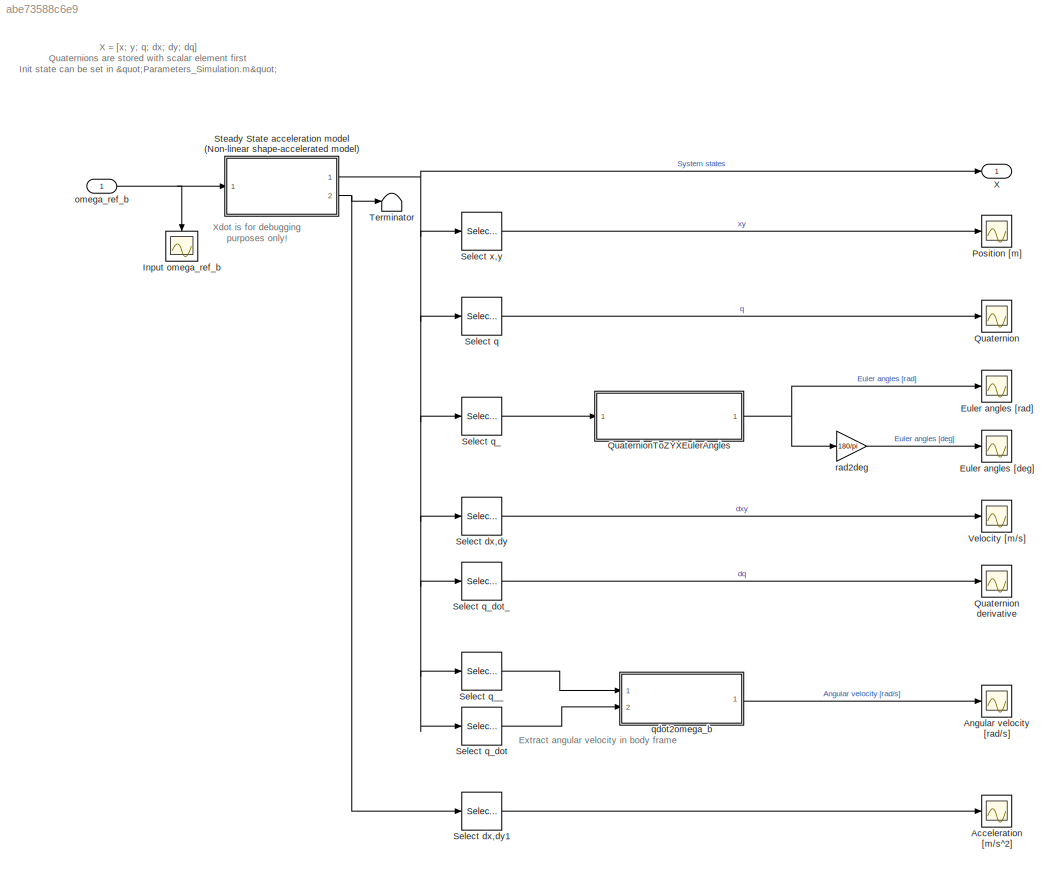
MODEL slx_abe73588c6e9
KIND model
CONFIG AbsTol = auto
CONFIG EnableMultiTasking = off
CONFIG FixedStep = 1e-3
CONFIG InitFcn = Parameters_Simulation\nConstants_Kugle\nConstants_nominal
CONFIG MaxStep = 1e-2
CONFIG MinStep = auto
CONFIG PreLoadFcn = modelDir = fileparts(get_param(bdroot, 'FileName'));\naddpath(fullfile(modelDir,'../../Parameters'));\naddpath(fullfile(modelDir,'../../Model/generated'));\naddpath(fullfile(modelDir,'../../Misc'));\n\nParameters_Simulation\nConstants_Kugle\nConstants_nominal
CONFIG RelTol = 1e-5
CONFIG SampleTimeConstraint = Unconstrained
CONFIG Solver = VariableStepAuto
CONFIG SolverName = VariableStepAuto
CONFIG StartTime = 0.0
CONFIG StopTime = 25
BLOCK [Scope] Acceleration [m//s^2]
  Floating = off
  NumInputPorts = 1
  Ports = [1]
  ScopeSpecificationString = Simulink.scopes.TimeScopeBlockCfg('CurrentConfiguration', extmgr.ConfigurationSet(extmgr.Configuration('Core','General UI',true),extmgr.Configuration('Core','Source UI',true),extmgr.Configuration('Sources','WiredSimulink',true,'DataLoggingVariableName','ScopeData1'),extmgr.Configuration('Visuals','Time Domain',true,'SerializedDisplays',{struct('MinYLimReal','-0.07757','MaxYLimReal','0.00672','YLab...<+1520ch>
BLOCK [Scope] Angular velocity [rad//s]
  Floating = off
  NumInputPorts = 1
  Ports = [1]
  ScopeSpecificationString = Simulink.scopes.TimeScopeBlockCfg('CurrentConfiguration', extmgr.ConfigurationSet(extmgr.Configuration('Core','General UI',true),extmgr.Configuration('Core','Source UI',true),extmgr.Configuration('Sources','WiredSimulink',true,'DataLoggingVariableName','ScopeData2'),extmgr.Configuration('Visuals','Time Domain',true,'SerializedDisplays',{struct('MinYLimReal','-0.50513','MaxYLimReal','0.63139','YLab...<+1577ch>
BLOCK [Scope] Euler angles [deg]
  Floating = off
  NumInputPorts = 1
  Ports = [1]
  ScopeSpecificationString = Simulink.scopes.TimeScopeBlockCfg('CurrentConfiguration', extmgr.ConfigurationSet(extmgr.Configuration('Core','General UI',true),extmgr.Configuration('Core','Source UI',true),extmgr.Configuration('Sources','WiredSimulink',true,'DataLoggingVariableName','ScopeData3'),extmgr.Configuration('Visuals','Time Domain',true,'SerializedDisplays',{struct('MinYLimReal','-12.16745','MaxYLimReal','12.24214','YL...<+1594ch>
BLOCK [Scope] Euler angles [rad]
  Floating = off
  NumInputPorts = 1
  Ports = [1]
  ScopeSpecificationString = Simulink.scopes.TimeScopeBlockCfg('CurrentConfiguration', extmgr.ConfigurationSet(extmgr.Configuration('Core','General UI',true),extmgr.Configuration('Core','Source UI',true),extmgr.Configuration('Sources','WiredSimulink',true,'DataLoggingVariableName','ScopeData4'),extmgr.Configuration('Visuals','Time Domain',true,'SerializedDisplays',{struct('MinYLimReal','-0.00196','MaxYLimReal','0.00406','YLab...<+1535ch>
BLOCK [Scope] Input omega_ref_b
  Floating = off
  NumInputPorts = 1
  Ports = [1]
  ScopeSpecificationString = Simulink.scopes.TimeScopeBlockCfg('CurrentConfiguration', extmgr.ConfigurationSet(extmgr.Configuration('Core','General UI',true),extmgr.Configuration('Core','Source UI',true),extmgr.Configuration('Sources','WiredSimulink',true,'DataLoggingVariableName','ScopeData6'),extmgr.Configuration('Visuals','Time Domain',true,'SerializedDisplays',{struct('MinYLimReal','-0.50513','MaxYLimReal','0.63139','YLab...<+1601ch>
BLOCK [Scope] Position [m]
  Floating = off
  NumInputPorts = 1
  Ports = [1]
  ScopeSpecificationString = Simulink.scopes.TimeScopeBlockCfg('CurrentConfiguration', extmgr.ConfigurationSet(extmgr.Configuration('Core','General UI',true),extmgr.Configuration('Core','Source UI',true),extmgr.Configuration('Sources','WiredSimulink',true,'DataLoggingVariableName','ScopeData5'),extmgr.Configuration('Visuals','Time Domain',true,'SerializedDisplays',{struct('MinYLimReal','-8.61406','MaxYLimReal','8.73542','YLab...<+1468ch>
BLOCK [Scope] Quaternion
  Floating = off
  NumInputPorts = 1
  Ports = [1]
  ScopeSpecificationString = Simulink.scopes.TimeScopeBlockCfg('CurrentConfiguration', extmgr.ConfigurationSet(extmgr.Configuration('Core','General UI',true),extmgr.Configuration('Core','Source UI',true),extmgr.Configuration('Sources','WiredSimulink',true,'DataLoggingVariableName','ScopeData6'),extmgr.Configuration('Visuals','Time Domain',true,'SerializedDisplays',{struct('MinYLimReal','-0.19697','MaxYLimReal','1.13298','YLab...<+1484ch>
BLOCK [Scope] Quaternion derivative
  Floating = off
  NumInputPorts = 1
  Ports = [1]
  ScopeSpecificationString = Simulink.scopes.TimeScopeBlockCfg('CurrentConfiguration', extmgr.ConfigurationSet(extmgr.Configuration('Core','General UI',true),extmgr.Configuration('Core','Source UI',true),extmgr.Configuration('Sources','WiredSimulink',true,'DataLoggingVariableName','ScopeData7'),extmgr.Configuration('Visuals','Time Domain',true,'SerializedDisplays',{struct('MinYLimReal','-1.99714','MaxYLimReal','1.05638','YLab...<+1492ch>
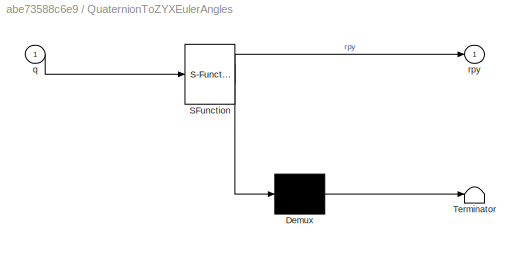
BLOCK [SubSystem] QuaternionToZYXEulerAngles
  ErrorFcn = Stateflow.Translate.translate
  PermitHierarchicalResolution = ExplicitOnly
  Ports = [1, 1]
  RequestExecContextInheritance = off
  SFBlockType = MATLAB Function
  TreatAsAtomicUnit = on
BLOCK [Demux] QuaternionToZYXEulerAngles/ Demux 
  Outputs = 1
  Ports = [1, 1]
BLOCK [S-Function] QuaternionToZYXEulerAngles/ SFunction 
  EnableBusSupport = on
  FunctionName = sf_sfun
  PortCounts = [1 2]
  Ports = [1, 2]
  SFcnIsStateOwnerBlock = off
  SFunctionDeploymentMode = off
  Tag = Stateflow S-Function SteadyStateAccelerationModel 1
BLOCK [Terminator] QuaternionToZYXEulerAngles/ Terminator 
BLOCK [Inport] QuaternionToZYXEulerAngles/q
  IconDisplay = Port number
BLOCK [Outport] QuaternionToZYXEulerAngles/rpy
  IconDisplay = Port number
BLOCK [Selector] Select dx,dy
  IndexOptions = Index vector (dialog)
  Indices = [7,8]
  InputPortWidth = 12
  OutputSizes = 1
  Ports = [1, 1]
BLOCK [Selector] Select dx,dy1
  IndexOptions = Index vector (dialog)
  Indices = [7,8]
  InputPortWidth = 12
  OutputSizes = 1
  Ports = [1, 1]
BLOCK [Selector] Select q
  IndexOptions = Index vector (dialog)
  Indices = [3,4,5,6]
  InputPortWidth = 12
  OutputSizes = 1
  Ports = [1, 1]
BLOCK [Selector] Select q_
  IndexOptions = Index vector (dialog)
  Indices = [3,4,5,6]
  InputPortWidth = 12
  OutputSizes = 1
  Ports = [1, 1]
BLOCK [Selector] Select q__
  IndexOptions = Index vector (dialog)
  Indices = [3,4,5,6]
  InputPortWidth = 12
  OutputSizes = 1
  Ports = [1, 1]
BLOCK [Selector] Select q_dot
  IndexOptions = Index vector (dialog)
  Indices = [9,10,11,12]
  InputPortWidth = 12
  OutputSizes = 1
  Ports = [1, 1]
BLOCK [Selector] Select q_dot_
  IndexOptions = Index vector (dialog)
  Indices = [9,10,11,12]
  InputPortWidth = 12
  OutputSizes = 1
  Ports = [1, 1]
BLOCK [Selector] Select x,y
  IndexOptions = Index vector (dialog)
  Indices = [1,2]
  InputPortWidth = 12
  OutputSizes = 1
  Ports = [1, 1]
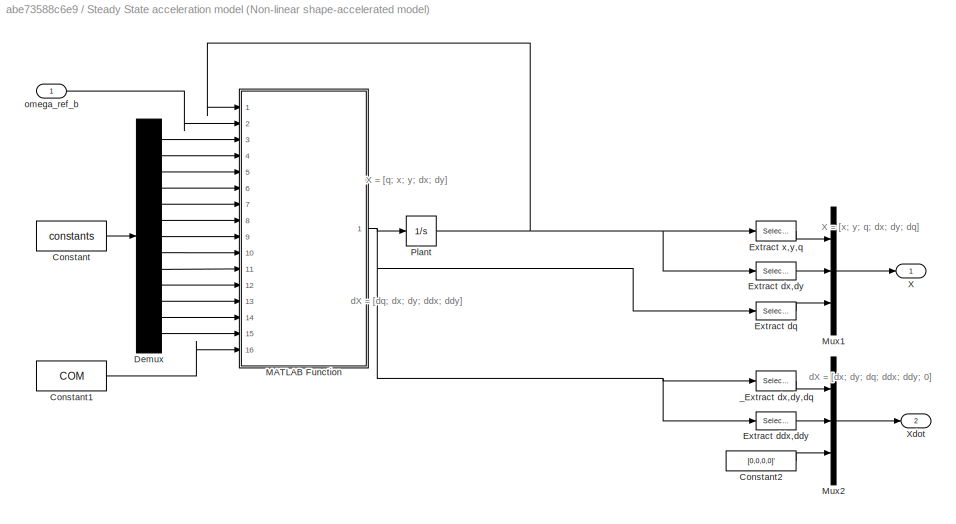
BLOCK [SubSystem] Steady State acceleration model (Non-linear shape-accelerated model)
  Ports = [1, 2]
  RequestExecContextInheritance = off
BLOCK [Constant] Steady State acceleration model (Non-linear shape-accelerated model)/Constant
  Value = constants
BLOCK [Constant] Steady State acceleration model (Non-linear shape-accelerated model)/Constant1
  Value = COM
BLOCK [Constant] Steady State acceleration model (Non-linear shape-accelerated model)/Constant2
  Value = [0,0,0,0]'
BLOCK [Demux] Steady State acceleration model (Non-linear shape-accelerated model)/Demux
  DisplayOption = bar
  Outputs = 13
  Ports = [1, 13]
BLOCK [Selector] Steady State acceleration model (Non-linear shape-accelerated model)/Extract ddx,ddy
  IndexOptions = Index vector (dialog)
  Indices = [7 8]
  InputPortWidth = 8
  OutputSizes = 1
  Ports = [1, 1]
BLOCK [Selector] Steady State acceleration model (Non-linear shape-accelerated model)/Extract dq
  IndexOptions = Index vector (dialog)
  Indices = [1 2 3 4]
  InputPortWidth = 8
  OutputSizes = 1
  Ports = [1, 1]
BLOCK [Selector] Steady State acceleration model (Non-linear shape-accelerated model)/Extract dx,dy
  IndexOptions = Index vector (dialog)
  Indices = [7 8]
  InputPortWidth = 8
  OutputSizes = 1
  Ports = [1, 1]
BLOCK [Selector] Steady State acceleration model (Non-linear shape-accelerated model)/Extract x,y,q
  IndexOptions = Index vector (dialog)
  Indices = [5 6 1 2 3 4]
  InputPortWidth = 8
  OutputSizes = 1
  Ports = [1, 1]
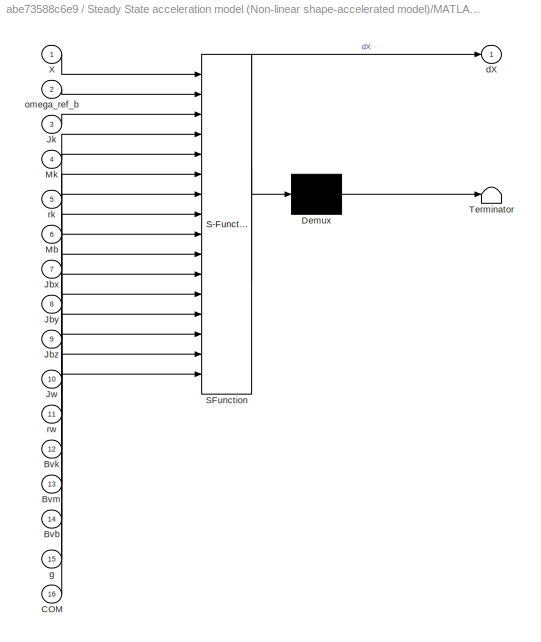
BLOCK [SubSystem] Steady State acceleration model (Non-linear shape-accelerated model)/MATLAB Function
  ErrorFcn = Stateflow.Translate.translate
  PermitHierarchicalResolution = ExplicitOnly
  Ports = [16, 1]
  RequestExecContextInheritance = off
  SFBlockType = MATLAB Function
  TreatAsAtomicUnit = on
BLOCK [Demux] Steady State acceleration model (Non-linear shape-accelerated model)/MATLAB Function/ Demux 
  Outputs = 1
  Ports = [1, 1]
BLOCK [S-Function] Steady State acceleration model (Non-linear shape-accelerated model)/MATLAB Function/ SFunction 
  EnableBusSupport = on
  FunctionName = sf_sfun
  PortCounts = [16 2]
  Ports = [16, 2]
  SFcnIsStateOwnerBlock = off
  SFunctionDeploymentMode = off
  Tag = Stateflow S-Function SteadyStateAccelerationModel 2
BLOCK [Terminator] Steady State acceleration model (Non-linear shape-accelerated model)/MATLAB Function/ Terminator 
BLOCK [Inport] Steady State acceleration model (Non-linear shape-accelerated model)/MATLAB Function/Bvb
  IconDisplay = Port number
  Port = 14
BLOCK [Inport] Steady State acceleration model (Non-linear shape-accelerated model)/MATLAB Function/Bvk
  IconDisplay = Port number
  Port = 12
BLOCK [Inport] Steady State acceleration model (Non-linear shape-accelerated model)/MATLAB Function/Bvm
  IconDisplay = Port number
  Port = 13
BLOCK [Inport] Steady State acceleration model (Non-linear shape-accelerated model)/MATLAB Function/COM
  IconDisplay = Port number
  Port = 16
BLOCK [Inport] Steady State acceleration model (Non-linear shape-accelerated model)/MATLAB Function/Jbx
  IconDisplay = Port number
  Port = 7
BLOCK [Inport] Steady State acceleration model (Non-linear shape-accelerated model)/MATLAB Function/Jby
  IconDisplay = Port number
  Port = 8
BLOCK [Inport] Steady State acceleration model (Non-linear shape-accelerated model)/MATLAB Function/Jbz
  IconDisplay = Port number
  Port = 9
BLOCK [Inport] Steady State acceleration model (Non-linear shape-accelerated model)/MATLAB Function/Jk
  IconDisplay = Port number
  Port = 3
BLOCK [Inport] Steady State acceleration model (Non-linear shape-accelerated model)/MATLAB Function/Jw
  IconDisplay = Port number
  Port = 10
BLOCK [Inport] Steady State acceleration model (Non-linear shape-accelerated model)/MATLAB Function/Mb
  IconDisplay = Port number
  Port = 6
BLOCK [Inport] Steady State acceleration model (Non-linear shape-accelerated model)/MATLAB Function/Mk
  IconDisplay = Port number
  Port = 4
BLOCK [Inport] Steady State acceleration model (Non-linear shape-accelerated model)/MATLAB Function/X
  IconDisplay = Port number
BLOCK [Outport] Steady State acceleration model (Non-linear shape-accelerated model)/MATLAB Function/dX
  IconDisplay = Port number
BLOCK [Inport] Steady State acceleration model (Non-linear shape-accelerated model)/MATLAB Function/g
  IconDisplay = Port number
  Port = 15
BLOCK [Inport] Steady State acceleration model (Non-linear shape-accelerated model)/MATLAB Function/omega_ref_b
  IconDisplay = Port number
  Port = 2
BLOCK [Inport] Steady State acceleration model (Non-linear shape-accelerated model)/MATLAB Function/rk
  IconDisplay = Port number
  Port = 5
BLOCK [Inport] Steady State acceleration model (Non-linear shape-accelerated model)/MATLAB Function/rw
  IconDisplay = Port number
  Port = 11
BLOCK [Mux] Steady State acceleration model (Non-linear shape-accelerated model)/Mux1
  DisplayOption = bar
  Inputs = 3
  Ports = [3, 1]
BLOCK [Mux] Steady State acceleration model (Non-linear shape-accelerated model)/Mux2
  DisplayOption = bar
  Inputs = 3
  Ports = [3, 1]
BLOCK [Integrator] Steady State acceleration model (Non-linear shape-accelerated model)/Plant
  InitialCondition = [x_init(3:6); x_init(1:2); x_init(7:8)]
  Ports = [1, 1]
BLOCK [Outport] Steady State acceleration model (Non-linear shape-accelerated model)/X
  IconDisplay = Port number
BLOCK [Outport] Steady State acceleration model (Non-linear shape-accelerated model)/Xdot
  IconDisplay = Port number
  Port = 2
BLOCK [Selector] Steady State acceleration model (Non-linear shape-accelerated model)/_Extract dx,dy,dq
  IndexOptions = Index vector (dialog)
  Indices = [5 6 1 2 3 4]
  InputPortWidth = 8
  OutputSizes = 1
  Ports = [1, 1]
BLOCK [Inport] Steady State acceleration model (Non-linear shape-accelerated model)/omega_ref_b
  IconDisplay = Port number
BLOCK [Terminator] Terminator
BLOCK [Scope] Velocity [m//s]
  Floating = off
  NumInputPorts = 1
  Ports = [1]
  ScopeSpecificationString = Simulink.scopes.TimeScopeBlockCfg('CurrentConfiguration', extmgr.ConfigurationSet(extmgr.Configuration('Core','General UI',true),extmgr.Configuration('Core','Source UI',true),extmgr.Configuration('Sources','WiredSimulink',true,'DataLoggingVariableName','ScopeData8'),extmgr.Configuration('Visuals','Time Domain',true,'SerializedDisplays',{struct('MinYLimReal','-1.21741','MaxYLimReal','0.13527','YLab...<+1474ch>
BLOCK [Outport] X
  IconDisplay = Port number
BLOCK [Inport] omega_ref_b
  IconDisplay = Port number
  PortDimensions = 3
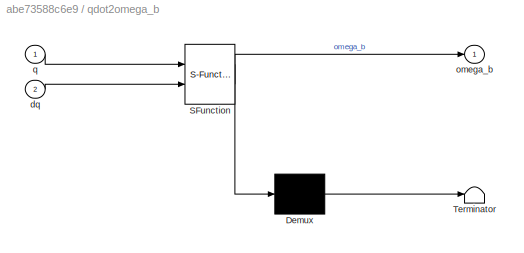
BLOCK [SubSystem] qdot2omega_b
  ErrorFcn = Stateflow.Translate.translate
  PermitHierarchicalResolution = ExplicitOnly
  Ports = [2, 1]
  RequestExecContextInheritance = off
  SFBlockType = MATLAB Function
  TreatAsAtomicUnit = on
BLOCK [Demux] qdot2omega_b/ Demux 
  Outputs = 1
  Ports = [1, 1]
BLOCK [S-Function] qdot2omega_b/ SFunction 
  EnableBusSupport = on
  FunctionName = sf_sfun
  PortCounts = [2 2]
  Ports = [2, 2]
  SFcnIsStateOwnerBlock = off
  SFunctionDeploymentMode = off
  Tag = Stateflow S-Function SteadyStateAccelerationModel 3
BLOCK [Terminator] qdot2omega_b/ Terminator 
BLOCK [Inport] qdot2omega_b/dq
  IconDisplay = Port number
  Port = 2
BLOCK [Outport] qdot2omega_b/omega_b
  IconDisplay = Port number
BLOCK [Inport] qdot2omega_b/q
  IconDisplay = Port number
BLOCK [Gain] rad2deg
  Gain = 180/pi
  OutDataTypeStr = Inherit: Inherit via internal rule
  ParamDataTypeStr = Inherit: Inherit via internal rule
  SaturateOnIntegerOverflow = off
ANNOTATION (root): X = [x; y; q; dx; dy; dq] Quaternions are stored with scalar element first Init state can be set in "Parameters_Simulation.m"
ANNOTATION (root): Xdot is for debugging purposes only!
ANNOTATION (root): Extract angular velocity in body frame
ANNOTATION Steady State acceleration model (Non-linear shape-accelerated model): X = [q; x; y; dx; dy]
ANNOTATION Steady State acceleration model (Non-linear shape-accelerated model): X = [x; y; q; dx; dy; dq]
ANNOTATION Steady State acceleration model (Non-linear shape-accelerated model): dX = [dq; dx; dy; ddx; ddy]
ANNOTATION Steady State acceleration model (Non-linear shape-accelerated model): dX = [dx; dy; dq; ddx; ddy; 0]
NET QuaternionToZYXEulerAngles:1 -> Euler angles [rad]:1, rad2deg:1
LINE Select dx,dy1:1 -> Acceleration [m//s^2]:1
LINE Select dx,dy:1 -> Velocity [m//s]:1
LINE Select q:1 -> Quaternion:1
LINE Select q_:1 -> QuaternionToZYXEulerAngles:1
LINE Select q__:1 -> qdot2omega_b:1
LINE Select q_dot:1 -> qdot2omega_b:2
LINE Select q_dot_:1 -> Quaternion derivative:1
LINE Select x,y:1 -> Position [m]:1
LINE Steady State acceleration model (Non-linear shape-accelerated model)/Constant1:1 -> Steady State acceleration model (Non-linear shape-accelerated model)/MATLAB Function:16
LINE Steady State acceleration model (Non-linear shape-accelerated model)/Constant2:1 -> Steady State acceleration model (Non-linear shape-accelerated model)/Mux2:3
LINE Steady State acceleration model (Non-linear shape-accelerated model)/Constant:1 -> Steady State acceleration model (Non-linear shape-accelerated model)/Demux:1
LINE Steady State acceleration model (Non-linear shape-accelerated model)/Demux:1 -> Steady State acceleration model (Non-linear shape-accelerated model)/MATLAB Function:3
LINE Steady State acceleration model (Non-linear shape-accelerated model)/Demux:10 -> Steady State acceleration model (Non-linear shape-accelerated model)/MATLAB Function:12
LINE Steady State acceleration model (Non-linear shape-accelerated model)/Demux:11 -> Steady State acceleration model (Non-linear shape-accelerated model)/MATLAB Function:13
LINE Steady State acceleration model (Non-linear shape-accelerated model)/Demux:12 -> Steady State acceleration model (Non-linear shape-accelerated model)/MATLAB Function:14
LINE Steady State acceleration model (Non-linear shape-accelerated model)/Demux:13 -> Steady State acceleration model (Non-linear shape-accelerated model)/MATLAB Function:15
LINE Steady State acceleration model (Non-linear shape-accelerated model)/Demux:2 -> Steady State acceleration model (Non-linear shape-accelerated model)/MATLAB Function:4
LINE Steady State acceleration model (Non-linear shape-accelerated model)/Demux:3 -> Steady State acceleration model (Non-linear shape-accelerated model)/MATLAB Function:5
LINE Steady State acceleration model (Non-linear shape-accelerated model)/Demux:4 -> Steady State acceleration model (Non-linear shape-accelerated model)/MATLAB Function:6
LINE Steady State acceleration model (Non-linear shape-accelerated model)/Demux:5 -> Steady State acceleration model (Non-linear shape-accelerated model)/MATLAB Function:7
LINE Steady State acceleration model (Non-linear shape-accelerated model)/Demux:6 -> Steady State acceleration model (Non-linear shape-accelerated model)/MATLAB Function:8
LINE Steady State acceleration model (Non-linear shape-accelerated model)/Demux:7 -> Steady State acceleration model (Non-linear shape-accelerated model)/MATLAB Function:9
LINE Steady State acceleration model (Non-linear shape-accelerated model)/Demux:8 -> Steady State acceleration model (Non-linear shape-accelerated model)/MATLAB Function:10
LINE Steady State acceleration model (Non-linear shape-accelerated model)/Demux:9 -> Steady State acceleration model (Non-linear shape-accelerated model)/MATLAB Function:11
LINE Steady State acceleration model (Non-linear shape-accelerated model)/Extract ddx,ddy:1 -> Steady State acceleration model (Non-linear shape-accelerated model)/Mux2:2
LINE Steady State acceleration model (Non-linear shape-accelerated model)/Extract dq:1 -> Steady State acceleration model (Non-linear shape-accelerated model)/Mux1:3
LINE Steady State acceleration model (Non-linear shape-accelerated model)/Extract dx,dy:1 -> Steady State acceleration model (Non-linear shape-accelerated model)/Mux1:2
LINE Steady State acceleration model (Non-linear shape-accelerated model)/Extract x,y,q:1 -> Steady State acceleration model (Non-linear shape-accelerated model)/Mux1:1
NET Steady State acceleration model (Non-linear shape-accelerated model)/MATLAB Function:1 -> Steady State acceleration model (Non-linear shape-accelerated model)/Extract ddx,ddy:1, Steady State acceleration model (Non-linear shape-accelerated model)/Extract dq:1, Steady State acceleration model (Non-linear shape-accelerated model)/Plant:1, Steady State acceleration model (Non-linear shape-accelerated model)/_Extract dx,dy,dq:1
LINE Steady State acceleration model (Non-linear shape-accelerated model)/Mux1:1 -> Steady State acceleration model (Non-linear shape-accelerated model)/X:1
LINE Steady State acceleration model (Non-linear shape-accelerated model)/Mux2:1 -> Steady State acceleration model (Non-linear shape-accelerated model)/Xdot:1
NET Steady State acceleration model (Non-linear shape-accelerated model)/Plant:1 -> Steady State acceleration model (Non-linear shape-accelerated model)/Extract dx,dy:1, Steady State acceleration model (Non-linear shape-accelerated model)/Extract x,y,q:1, Steady State acceleration model (Non-linear shape-accelerated model)/MATLAB Function:1
LINE Steady State acceleration model (Non-linear shape-accelerated model)/_Extract dx,dy,dq:1 -> Steady State acceleration model (Non-linear shape-accelerated model)/Mux2:1
LINE Steady State acceleration model (Non-linear shape-accelerated model)/omega_ref_b:1 -> Steady State acceleration model (Non-linear shape-accelerated model)/MATLAB Function:2
NET Steady State acceleration model (Non-linear shape-accelerated model):1 -> Select dx,dy:1, Select q:1, Select q_:1, Select q__:1, Select q_dot:1, Select q_dot_:1, Select x,y:1, X:1
NET Steady State acceleration model (Non-linear shape-accelerated model):2 -> Select dx,dy1:1, Terminator:1
NET omega_ref_b:1 -> Input omega_ref_b:1, Steady State acceleration model (Non-linear shape-accelerated model):1
LINE qdot2omega_b:1 -> Angular velocity [rad//s]:1
LINE rad2deg:1 -> Euler angles [deg]:1
note: NET lines group one-source signal fan-out (src -> all destinations, sorted); 1:1 wires keep LINE
CHART QuaternionToZYXEulerAngles states=1 transitions=1
  STATE_LABEL 'eML_blk_kernel()'
  STATE_LABEL 'SCRIPT:\nfunction rpy = Quaternion2ZYXEulerAngles(q)\n    rpy = Quaternion2ZYXEulerAngles(q);\nend'
CHART Steady State acceleration model
(Non-linear shape-accelerated model)/MATLAB Function states=1 transitions=1
  STATE_LABEL 'eML_blk_kernel()'
  STATE_LABEL 'SCRIPT:\nfunction dX = NonlinearMPCmodel(X,omega_ref_b,Jk,Mk,rk,Mb,Jbx,Jby,Jbz,Jw,rw,Bvk,Bvm,Bvb,g,COM)\n    Phi = @(q)[q(1) -q(2) -q(3) -q(4);     % for q o p = Phi(q) * p\n              q(2) q(1)  -q(4) q(3);\n              q(3) q(4)  q(1)  -q(2);\n              q(4) -q(3) q(2)  q(1)];           \n    Gamma = @(p)[p(1) -p(2) -p(3) -p(4);   % for q o p = Gamma(p) * q\n                 p(2) p(1) p(4) -p(...<+858ch>'
CHART qdot2omega_b states=1 transitions=1
  STATE_LABEL 'eML_blk_kernel()'
  STATE_LABEL 'SCRIPT:\nfunction omega_b = qdot2omega_b(q, dq)\n    omega_b = qdot2omega_b(q, dq);\nend'
